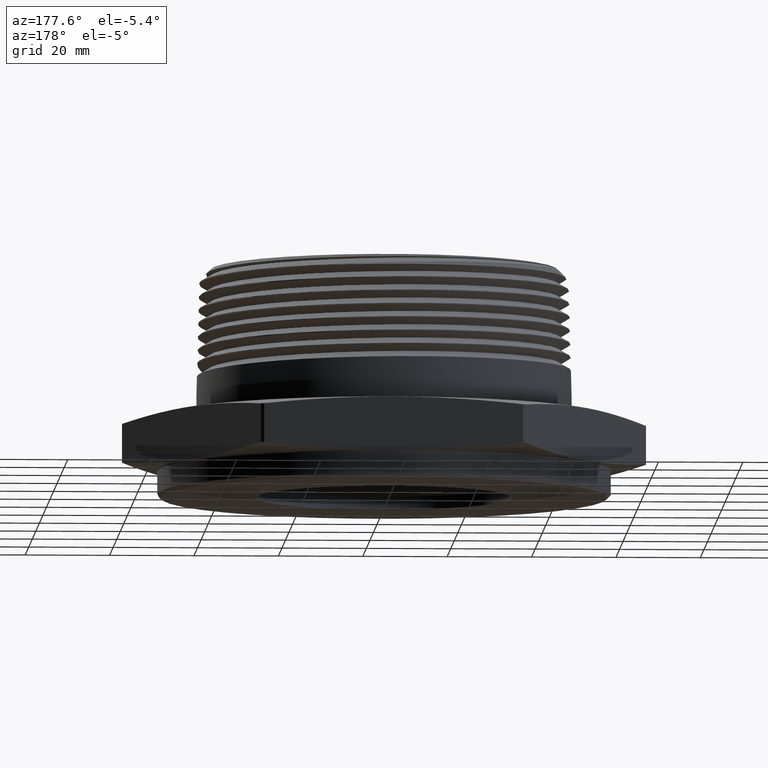
[diagram: clean part render]
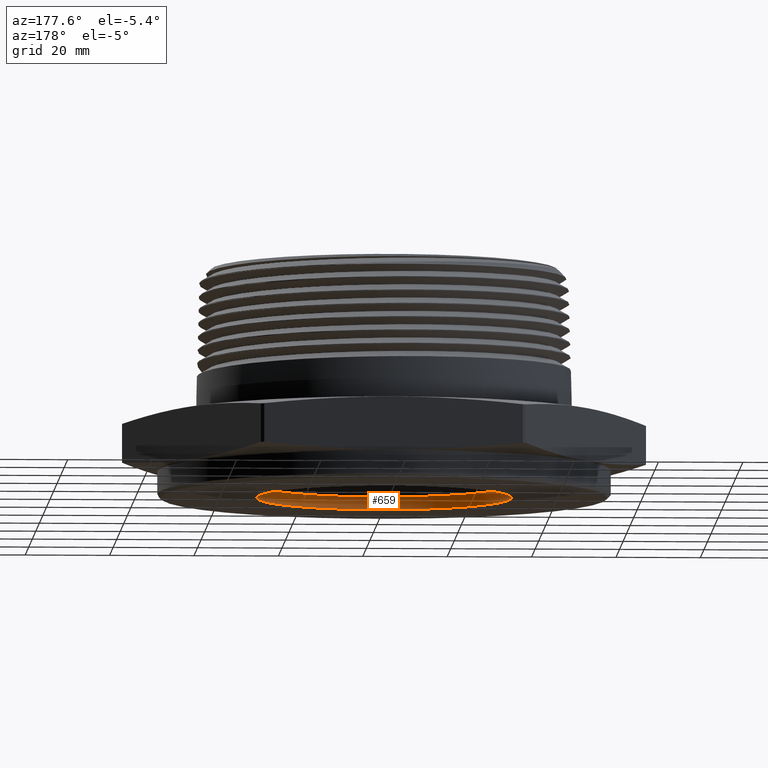
[diagram: same view with one face highlighted and labeled with its STEP entity id]
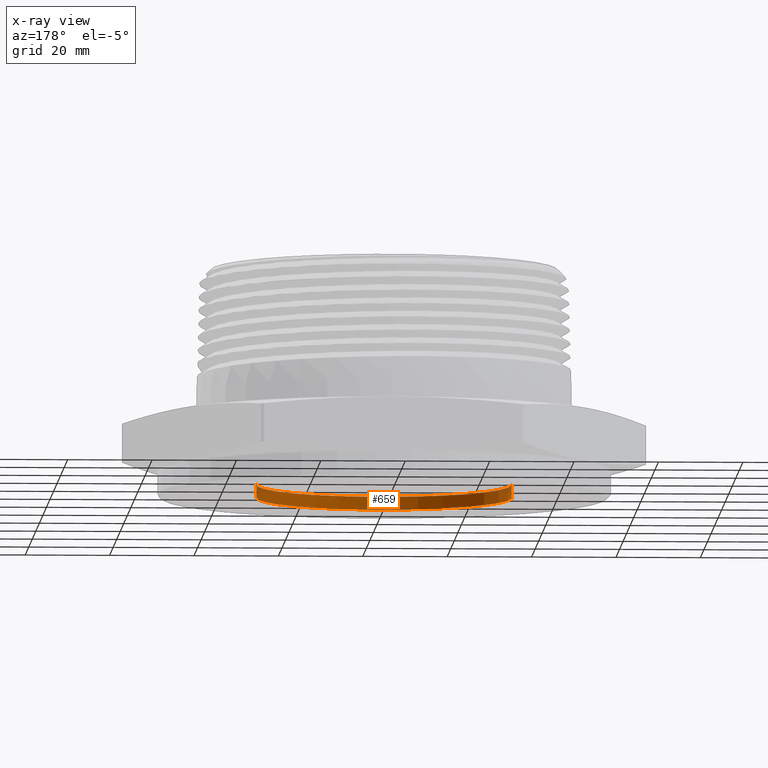
[diagram: x-ray of the same camera — body ghosted, the highlighted face saturated]
A machine part, auxiliary view. The second image highlights one B-rep face of the part: STEP entity #659.
The next image is the same camera in x-ray: the body ghosted, the highlighted face saturated — about 4% of this face is hidden behind the body in this view.
In plain terms, the highlighted cylindrical surface (partial cylindrical patch) has radius 30.226 mm, axis along (0, -0, -1).
Its self-contained STEP definition (entity closure, byte-faithful):
#659 = ADVANCED_FACE ( 'NONE', ( #6162 ), #6161, .F. ) ;
#1530 = DIRECTION ( 'NONE',  ( 3.475283666183381100E-018, -0.0000000000000000000, -1.000000000000000000 ) ) ;
#1534 = CARTESIAN_POINT ( 'NONE',  ( -1.189999999999999900, 0.0000000000000000000, -0.2500000000000000000 ) ) ;
#1538 = DIRECTION ( 'NONE',  ( 3.475283666183381100E-018, -0.0000000000000000000, -1.000000000000000000 ) ) ;
#1541 = CARTESIAN_POINT ( 'NONE',  ( 1.189999999999999900, 1.457329690985350300E-016, -0.2500000000000000000 ) ) ;
#1542 = CARTESIAN_POINT ( 'NONE',  ( 4.898587196589325700E-018, 0.0000000000000000000, -0.2500000000000000000 ) ) ;
#1543 = DIRECTION ( 'NONE',  ( 3.475283666183381100E-018, -0.0000000000000000000, -1.000000000000000000 ) ) ;
#1544 = DIRECTION ( 'NONE',  ( -1.000000000000000000, 0.0000000000000000000, 0.0000000000000000000 ) ) ;
#1547 = CARTESIAN_POINT ( 'NONE',  ( 4.481553156647320800E-018, 0.0000000000000000000, -0.1299999999999999500 ) ) ;
#1548 = DIRECTION ( 'NONE',  ( 3.475283666183381100E-018, -0.0000000000000000000, -1.000000000000000000 ) ) ;
#1549 = DIRECTION ( 'NONE',  ( -1.000000000000000000, 0.0000000000000000000, 0.0000000000000000000 ) ) ;
#2291 = CARTESIAN_POINT ( 'NONE',  ( -1.189999999999999900, 0.0000000000000000000, -0.2500000000000000000 ) ) ;
#2294 = CARTESIAN_POINT ( 'NONE',  ( 1.189999999999999900, 1.457329690985350300E-016, -0.2500000000000000000 ) ) ;
#2295 = CARTESIAN_POINT ( 'NONE',  ( 1.189999999999999900, 1.457329690985350300E-016, -0.1299999999999999500 ) ) ;
#2297 = CARTESIAN_POINT ( 'NONE',  ( -1.189999999999999900, 0.0000000000000000000, -0.1299999999999999500 ) ) ;
#3519 = VERTEX_POINT ( 'NONE', #2291 ) ;
#3522 = VERTEX_POINT ( 'NONE', #2294 ) ;
#3523 = VERTEX_POINT ( 'NONE', #2295 ) ;
#3525 = VERTEX_POINT ( 'NONE', #2297 ) ;
#3591 = ORIENTED_EDGE ( 'NONE', *, *, #7133, .T. ) ;
#3592 = ORIENTED_EDGE ( 'NONE', *, *, #7134, .T. ) ;
#3593 = ORIENTED_EDGE ( 'NONE', *, *, #7135, .F. ) ;
#3666 = EDGE_LOOP ( 'NONE', ( #3593, #3592, #3591, #3687 ) ) ;
#3687 = ORIENTED_EDGE ( 'NONE', *, *, #7132, .F. ) ;
#5764 = AXIS2_PLACEMENT_3D ( 'NONE', #6098, #6097, #6099 ) ;
#5833 = AXIS2_PLACEMENT_3D ( 'NONE', #1542, #1543, #1544 ) ;
#5834 = AXIS2_PLACEMENT_3D ( 'NONE', #1547, #1548, #1549 ) ;
#6097 = DIRECTION ( 'NONE',  ( 3.475283666183381100E-018, -0.0000000000000000000, -1.000000000000000000 ) ) ;
#6098 = CARTESIAN_POINT ( 'NONE',  ( 4.898587196589325700E-018, 0.0000000000000000000, -0.2500000000000000000 ) ) ;
#6099 = DIRECTION ( 'NONE',  ( -1.000000000000000000, 0.0000000000000000000, 0.0000000000000000000 ) ) ;
#6161 = CYLINDRICAL_SURFACE ( 'NONE', #5764, 1.189999999999999900 ) ;
#6162 = FACE_OUTER_BOUND ( 'NONE', #3666, .T. ) ;
#6303 = CIRCLE ( 'NONE', #5833, 1.189999999999999900 ) ;
#6305 = LINE ( 'NONE', #1534, #6307 ) ;
#6306 = LINE ( 'NONE', #1541, #6310 ) ;
#6307 = VECTOR ( 'NONE', #1530, 39.37007874015748100 ) ;
#6309 = CIRCLE ( 'NONE', #5834, 1.189999999999999900 ) ;
#6310 = VECTOR ( 'NONE', #1538, 39.37007874015748100 ) ;
#7132 = EDGE_CURVE ( 'NONE', #3525, #3519, #6305, .T. ) ;
#7133 = EDGE_CURVE ( 'NONE', #3522, #3519, #6303, .T. ) ;
#7134 = EDGE_CURVE ( 'NONE', #3523, #3522, #6306, .T. ) ;
#7135 = EDGE_CURVE ( 'NONE', #3523, #3525, #6309, .T. ) ;